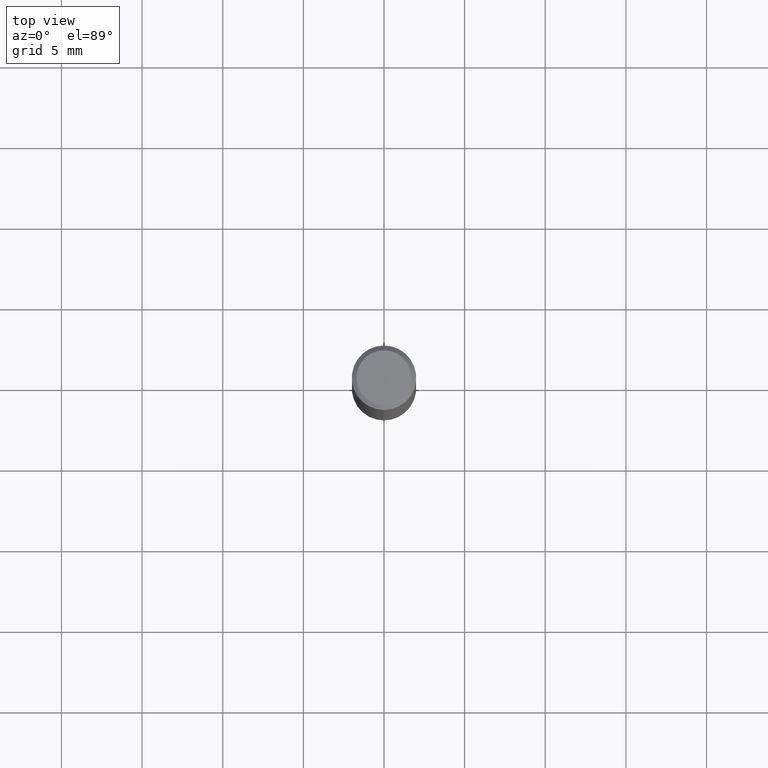
[diagram: clean part render]
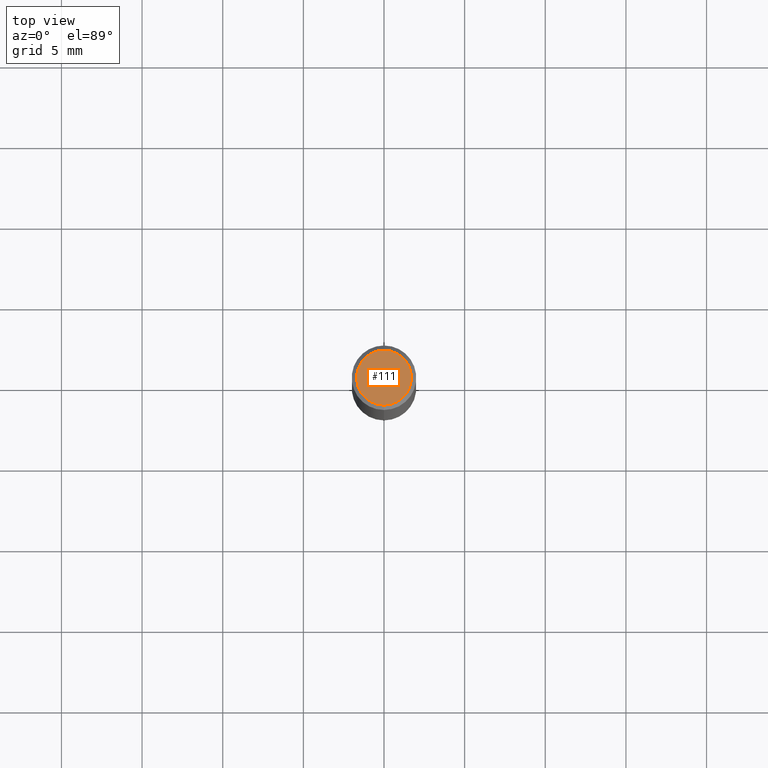
[diagram: same view with one face highlighted and labeled with its STEP entity id]
A machine part, top view. The second image highlights one B-rep face of the part: STEP entity #111.
In plain terms, the highlighted planar face has unit normal (-0, 0, 1).
Its self-contained STEP definition (entity closure, byte-faithful):
#111=ADVANCED_FACE('',(#282),#283,.T.);
#137=EDGE_CURVE('',#183,#169,#312,.T.);
#169=VERTEX_POINT('',#349);
#183=VERTEX_POINT('',#364);
#199=EDGE_CURVE('',#169,#183,#381,.T.);
#282=FACE_OUTER_BOUND('',#468,.T.);
#283=PLANE('',#469);
#312=CIRCLE('',#505,1.7);
#349=CARTESIAN_POINT('',(0.0,1.7,0.0));
#364=CARTESIAN_POINT('',(2.08183080149804E-016,-1.7,0.0));
#381=CIRCLE('',#595,1.7);
#468=EDGE_LOOP('',(#687,#688));
#469=AXIS2_PLACEMENT_3D('',#689,#690,#691);
#505=AXIS2_PLACEMENT_3D('',#729,#730,#731);
#595=AXIS2_PLACEMENT_3D('',#808,#809,#810);
#687=ORIENTED_EDGE('',*,*,#199,.F.);
#688=ORIENTED_EDGE('',*,*,#137,.F.);
#689=CARTESIAN_POINT('',(0.0,0.85,0.0));
#690=DIRECTION('',(-0.0,0.0,1.0));
#691=DIRECTION('',(0.0,-1.0,0.0));
#729=CARTESIAN_POINT('',(0.0,0.0,0.0));
#730=DIRECTION('',(0.0,0.0,-1.0));
#731=DIRECTION('',(0.0,1.0,0.0));
#808=CARTESIAN_POINT('',(0.0,0.0,0.0));
#809=DIRECTION('',(0.0,0.0,-1.0));
#810=DIRECTION('',(0.0,1.0,0.0));